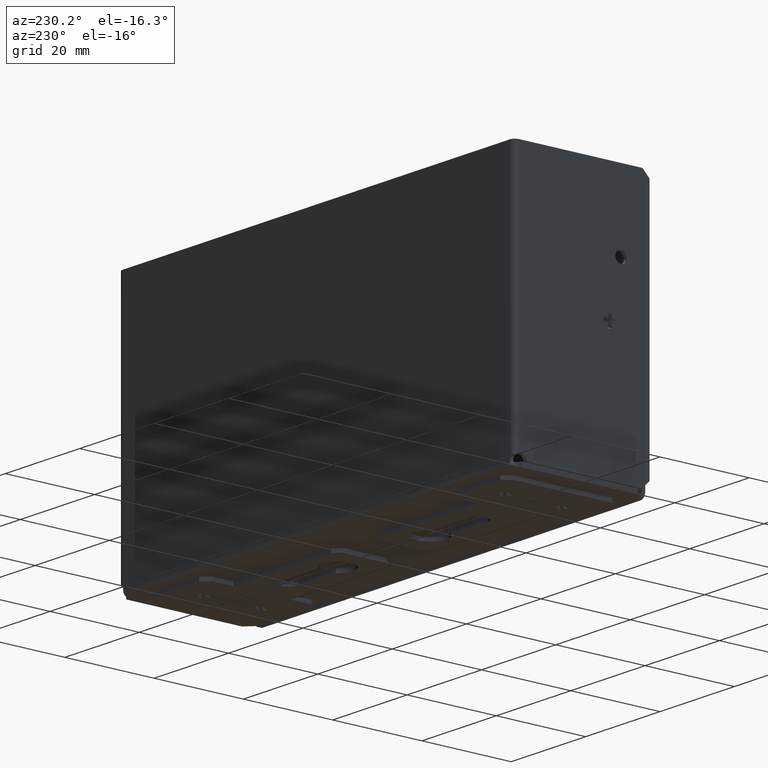
[diagram: clean part render]
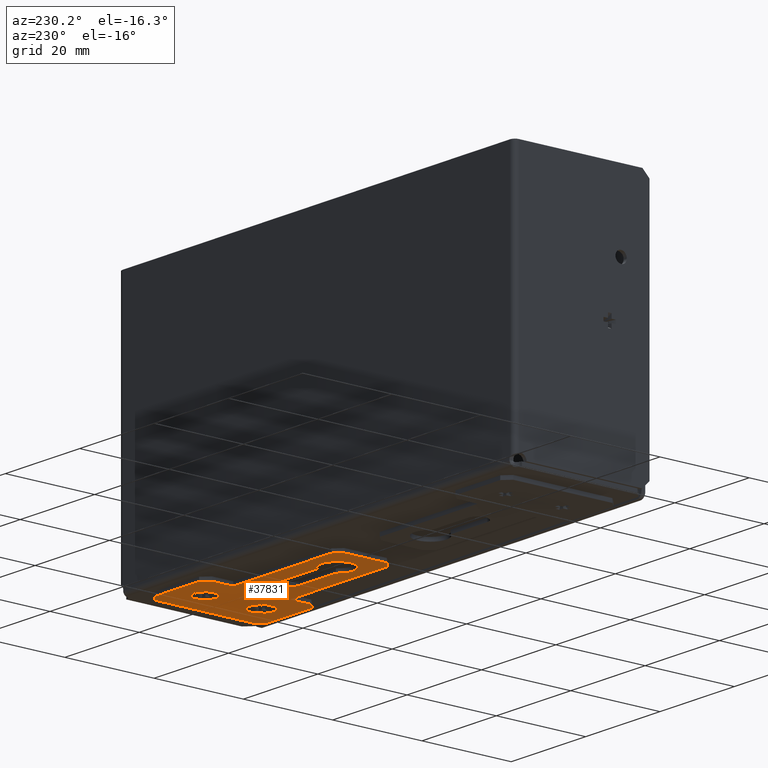
[diagram: same view with one face highlighted and labeled with its STEP entity id]
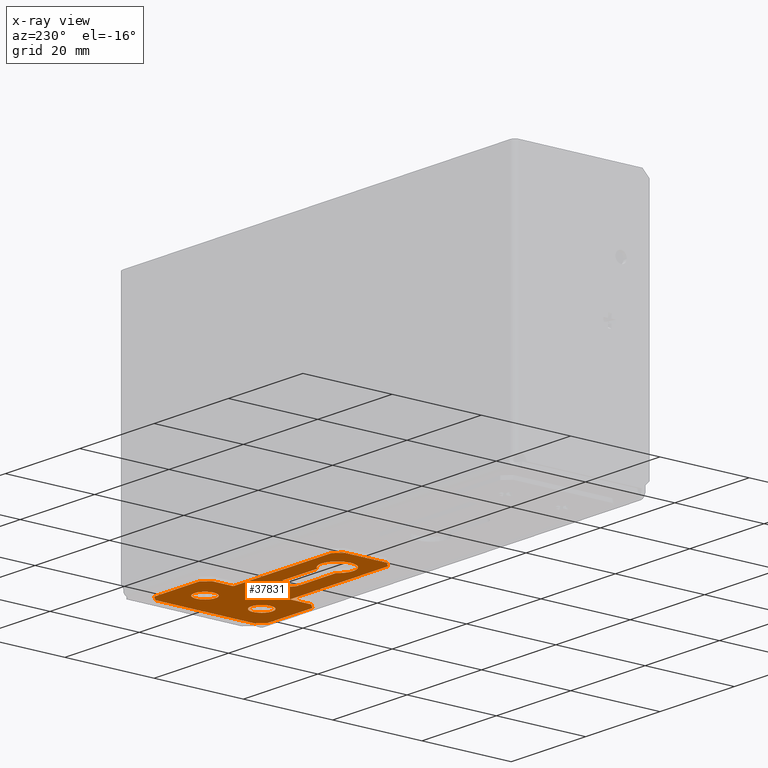
[diagram: x-ray of the same camera — body ghosted, the highlighted face saturated]
A machine part, auxiliary view. The second image highlights one B-rep face of the part: STEP entity #37831.
The next image is the same camera in x-ray: the body ghosted, the highlighted face saturated — about 0% of this face is hidden behind the body in this view.
In plain terms, the highlighted planar face has unit normal (-0, 0, 1).
Its self-contained STEP definition (entity closure, byte-faithful):
#957 = CARTESIAN_POINT ( 'NONE',  ( 0.0000000000000000000, -6.350000000000022700, -0.8636000000000000300 ) ) ;
#960 = DIRECTION ( 'NONE',  ( 0.0000000000000000000, 0.0000000000000000000, 1.000000000000000000 ) ) ;
#962 = DIRECTION ( 'NONE',  ( 1.000000000000000000, 0.0000000000000000000, 0.0000000000000000000 ) ) ;
#2952 = VECTOR ( 'NONE', #6332, 1000.000000000000000 ) ;
#3116 = VECTOR ( 'NONE', #6727, 1000.000000000000000 ) ;
#3177 = VECTOR ( 'NONE', #6914, 1000.000000000000100 ) ;
#3183 = VECTOR ( 'NONE', #6932, 1000.000000000000000 ) ;
#3184 = VECTOR ( 'NONE', #6937, 1000.000000000000000 ) ;
#3186 = VECTOR ( 'NONE', #6942, 1000.000000000000000 ) ;
#3190 = CIRCLE ( 'NONE', #3193, 2.374900000000000200 ) ;
#3193 = AXIS2_PLACEMENT_3D ( 'NONE', #6959, #6961, #6963 ) ;
#3194 = CIRCLE ( 'NONE', #3198, 2.095500000000001700 ) ;
#3196 = CIRCLE ( 'NONE', #3203, 3.568700000000018400 ) ;
#3198 = AXIS2_PLACEMENT_3D ( 'NONE', #6973, #6974, #6976 ) ;
#3203 = AXIS2_PLACEMENT_3D ( 'NONE', #6981, #6983, #6985 ) ;
#3224 = VECTOR ( 'NONE', #7041, 1000.000000000000000 ) ;
#3230 = VECTOR ( 'NONE', #7060, 1000.000000000000000 ) ;
#3234 = VECTOR ( 'NONE', #7088, 1000.000000000000000 ) ;
#3238 = VECTOR ( 'NONE', #7119, 1000.000000000000000 ) ;
#3251 = VECTOR ( 'NONE', #7149, 1000.000000000000000 ) ;
#5301 = EDGE_LOOP ( 'NONE', ( #21187, #20982, #21432, #22958, #20937, #27080, #26937, #26936, #27121, #21322, #23007, #21231, #21422, #23009 ) ) ;
#6330 = LINE ( 'NONE', #6331, #2952 ) ;
#6331 = CARTESIAN_POINT ( 'NONE',  ( 33.97250000000002500, 6.349999999999977400, -0.8636000000000000300 ) ) ;
#6332 = DIRECTION ( 'NONE',  ( -1.000000000000000000, 0.0000000000000000000, 0.0000000000000000000 ) ) ;
#6677 = LINE ( 'NONE', #6724, #3116 ) ;
#6709 = LINE ( 'NONE', #6766, #25756 ) ;
#6724 = CARTESIAN_POINT ( 'NONE',  ( 35.55999999999999500, 4.762499999999977100, -0.8636000000000000300 ) ) ;
#6727 = DIRECTION ( 'NONE',  ( -0.7071067811865409100, 0.7071067811865541200, 0.0000000000000000000 ) ) ;
#6766 = CARTESIAN_POINT ( 'NONE',  ( 33.97250000000002500, -6.350000000000022700, -0.8636000000000000300 ) ) ;
#6769 = DIRECTION ( 'NONE',  ( 0.7071067811865411300, 0.7071067811865539000, 0.0000000000000000000 ) ) ;
#6787 = LINE ( 'NONE', #6789, #25944 ) ;
#6789 = CARTESIAN_POINT ( 'NONE',  ( 7.620000000000062300, -11.11249999999992100, -0.8636000000000000300 ) ) ;
#6791 = DIRECTION ( 'NONE',  ( 0.0000000000000000000, 1.000000000000000000, 0.0000000000000000000 ) ) ;
#6910 = LINE ( 'NONE', #6912, #3177 ) ;
#6912 = CARTESIAN_POINT ( 'NONE',  ( -6.032499999999948200, 12.69999999999998000, -0.8636000000000000300 ) ) ;
#6914 = DIRECTION ( 'NONE',  ( -0.7071067811865474600, -0.7071067811865474600, 0.0000000000000000000 ) ) ;
#6927 = LINE ( 'NONE', #6930, #3183 ) ;
#6930 = CARTESIAN_POINT ( 'NONE',  ( 35.55999999999999500, -4.762500000000022400, -0.8636000000000000300 ) ) ;
#6932 = DIRECTION ( 'NONE',  ( 0.0000000000000000000, 1.000000000000000000, 0.0000000000000000000 ) ) ;
#6933 = LINE ( 'NONE', #6936, #3184 ) ;
#6936 = CARTESIAN_POINT ( 'NONE',  ( 6.032500000000062800, 12.69999999999998000, -0.8636000000000000300 ) ) ;
#6937 = DIRECTION ( 'NONE',  ( -1.000000000000000000, 0.0000000000000000000, 0.0000000000000000000 ) ) ;
#6938 = LINE ( 'NONE', #6941, #3186 ) ;
#6941 = CARTESIAN_POINT ( 'NONE',  ( 7.620000000000062300, 11.11249999999997900, -0.8636000000000000300 ) ) ;
#6942 = DIRECTION ( 'NONE',  ( -0.7071067811865473500, 0.7071067811865477900, 0.0000000000000000000 ) ) ;
#6959 = CARTESIAN_POINT ( 'NONE',  ( 0.0000000000000000000, 6.349999999999999600, -0.8636000000000000300 ) ) ;
#6961 = DIRECTION ( 'NONE',  ( 0.0000000000000000000, 0.0000000000000000000, 1.000000000000000000 ) ) ;
#6963 = DIRECTION ( 'NONE',  ( 1.000000000000000000, 0.0000000000000000000, 0.0000000000000000000 ) ) ;
#6973 = CARTESIAN_POINT ( 'NONE',  ( 15.24000000000005700, 0.01330230258000382600, -0.8636000000000000300 ) ) ;
#6974 = DIRECTION ( 'NONE',  ( 0.0000000000000000000, 0.0000000000000000000, 1.000000000000000000 ) ) ;
#6976 = DIRECTION ( 'NONE',  ( 1.000000000000000000, 0.0000000000000000000, 0.0000000000000000000 ) ) ;
#6981 = CARTESIAN_POINT ( 'NONE',  ( 27.93999999969150800, 0.01330230215399235200, -0.8636000000000000300 ) ) ;
#6983 = DIRECTION ( 'NONE',  ( 0.0000000000000000000, 0.0000000000000000000, 1.000000000000000000 ) ) ;
#6985 = DIRECTION ( 'NONE',  ( 1.000000000000000000, 0.0000000000000000000, 0.0000000000000000000 ) ) ;
#7019 = LINE ( 'NONE', #7084, #3234 ) ;
#7036 = LINE ( 'NONE', #7039, #3224 ) ;
#7039 = CARTESIAN_POINT ( 'NONE',  ( 25.05131527507812100, 2.108802302580004900, -0.8636000000000000300 ) ) ;
#7041 = DIRECTION ( 'NONE',  ( -1.000000000000000000, 0.0000000000000000000, 0.0000000000000000000 ) ) ;
#7055 = LINE ( 'NONE', #7058, #3230 ) ;
#7058 = CARTESIAN_POINT ( 'NONE',  ( 7.620000000000062300, -6.350000000000022700, -0.8636000000000000300 ) ) ;
#7060 = DIRECTION ( 'NONE',  ( 1.000000000000000000, 0.0000000000000000000, 0.0000000000000000000 ) ) ;
#7064 = LINE ( 'NONE', #7116, #3238 ) ;
#7084 = CARTESIAN_POINT ( 'NONE',  ( 6.032500000000062800, -12.69999999999991900, -0.8636000000000000300 ) ) ;
#7088 = DIRECTION ( 'NONE',  ( 0.7071067811865477900, 0.7071067811865473500, 0.0000000000000000000 ) ) ;
#7116 = CARTESIAN_POINT ( 'NONE',  ( -6.032499999999948200, -12.69999999999991900, -0.8636000000000000300 ) ) ;
#7119 = DIRECTION ( 'NONE',  ( 1.000000000000000000, 0.0000000000000000000, 0.0000000000000000000 ) ) ;
#7144 = LINE ( 'NONE', #7147, #3251 ) ;
#7147 = CARTESIAN_POINT ( 'NONE',  ( -7.619999999999948600, -11.11249999999992100, -0.8636000000000000300 ) ) ;
#7149 = DIRECTION ( 'NONE',  ( 0.7071067811865479100, -0.7071067811865471300, 0.0000000000000000000 ) ) ;
#7202 = LINE ( 'NONE', #7204, #25567 ) ;
#7204 = CARTESIAN_POINT ( 'NONE',  ( 15.24000000000005700, -2.082197697419997200, -0.8636000000000000300 ) ) ;
#7206 = DIRECTION ( 'NONE',  ( 1.000000000000000000, 0.0000000000000000000, 0.0000000000000000000 ) ) ;
#7424 = LINE ( 'NONE', #7511, #25322 ) ;
#7511 = CARTESIAN_POINT ( 'NONE',  ( -7.619999999999948600, 11.11249999999997900, -0.8636000000000000300 ) ) ;
#7514 = DIRECTION ( 'NONE',  ( 0.0000000000000000000, -1.000000000000000000, 0.0000000000000000000 ) ) ;
#10057 = AXIS2_PLACEMENT_3D ( 'NONE', #28210, #28212, #28213 ) ;
#10073 = CIRCLE ( 'NONE', #10057, 3.568700000000018400 ) ;
#10089 = CIRCLE ( 'NONE', #10337, 2.374900000000000200 ) ;
#10195 = AXIS2_PLACEMENT_3D ( 'NONE', #28321, #28322, #28323 ) ;
#10337 = AXIS2_PLACEMENT_3D ( 'NONE', #28214, #28215, #28217 ) ;
#10729 = CIRCLE ( 'NONE', #10195, 2.374900000000000200 ) ;
#10879 = VECTOR ( 'NONE', #28149, 1000.000000000000000 ) ;
#20937 = ORIENTED_EDGE ( 'NONE', *, *, #23794, .F. ) ;
#20982 = ORIENTED_EDGE ( 'NONE', *, *, #48628, .F. ) ;
#21187 = ORIENTED_EDGE ( 'NONE', *, *, #23346, .F. ) ;
#21221 = ORIENTED_EDGE ( 'NONE', *, *, #48734, .T. ) ;
#21231 = ORIENTED_EDGE ( 'NONE', *, *, #48723, .F. ) ;
#21322 = ORIENTED_EDGE ( 'NONE', *, *, #48760, .F. ) ;
#21422 = ORIENTED_EDGE ( 'NONE', *, *, #48727, .F. ) ;
#21432 = ORIENTED_EDGE ( 'NONE', *, *, #48694, .F. ) ;
#21437 = ORIENTED_EDGE ( 'NONE', *, *, #23362, .T. ) ;
#22946 = ORIENTED_EDGE ( 'NONE', *, *, #48731, .T. ) ;
#22950 = ORIENTED_EDGE ( 'NONE', *, *, #23363, .T. ) ;
#22958 = ORIENTED_EDGE ( 'NONE', *, *, #48726, .F. ) ;
#22959 = ORIENTED_EDGE ( 'NONE', *, *, #23382, .T. ) ;
#22962 = ORIENTED_EDGE ( 'NONE', *, *, #23685, .T. ) ;
#23007 = ORIENTED_EDGE ( 'NONE', *, *, #23910, .F. ) ;
#23009 = ORIENTED_EDGE ( 'NONE', *, *, #48728, .F. ) ;
#23346 = EDGE_CURVE ( 'NONE', #42849, #42268, #28144, .T. ) ;
#23362 = EDGE_CURVE ( 'NONE', #41848, #41790, #10073, .T. ) ;
#23363 = EDGE_CURVE ( 'NONE', #41795, #42835, #10089, .T. ) ;
#23382 = EDGE_CURVE ( 'NONE', #42858, #41837, #10729, .T. ) ;
#23685 = EDGE_CURVE ( 'NONE', #42835, #41795, #26028, .T. ) ;
#23794 = EDGE_CURVE ( 'NONE', #42275, #42273, #6709, .T. ) ;
#23798 = EDGE_CURVE ( 'NONE', #42279, #42276, #6787, .T. ) ;
#23861 = EDGE_CURVE ( 'NONE', #42252, #42258, #7202, .T. ) ;
#23910 = EDGE_CURVE ( 'NONE', #42287, #42285, #7424, .T. ) ;
#25322 = VECTOR ( 'NONE', #7514, 1000.000000000000000 ) ;
#25567 = VECTOR ( 'NONE', #7206, 1000.000000000000000 ) ;
#25756 = VECTOR ( 'NONE', #6769, 1000.000000000000000 ) ;
#25944 = VECTOR ( 'NONE', #6791, 1000.000000000000000 ) ;
#26005 = AXIS2_PLACEMENT_3D ( 'NONE', #957, #960, #962 ) ;
#26028 = CIRCLE ( 'NONE', #26005, 2.374900000000000200 ) ;
#26936 = ORIENTED_EDGE ( 'NONE', *, *, #48750, .F. ) ;
#26937 = ORIENTED_EDGE ( 'NONE', *, *, #23798, .F. ) ;
#27080 = ORIENTED_EDGE ( 'NONE', *, *, #48746, .F. ) ;
#27098 = ORIENTED_EDGE ( 'NONE', *, *, #23861, .T. ) ;
#27121 = ORIENTED_EDGE ( 'NONE', *, *, #48755, .F. ) ;
#27239 = ORIENTED_EDGE ( 'NONE', *, *, #48733, .T. ) ;
#27305 = ORIENTED_EDGE ( 'NONE', *, *, #48743, .T. ) ;
#28140 = CARTESIAN_POINT ( 'NONE',  ( 7.620000000000062300, 6.349999999999977400, -0.8636000000000000300 ) ) ;
#28144 = LINE ( 'NONE', #28140, #10879 ) ;
#28149 = DIRECTION ( 'NONE',  ( 0.0000000000000000000, 1.000000000000000000, 0.0000000000000000000 ) ) ;
#28210 = CARTESIAN_POINT ( 'NONE',  ( 27.93999999969150800, 0.01330230215399235200, -0.8636000000000000300 ) ) ;
#28212 = DIRECTION ( 'NONE',  ( 0.0000000000000000000, 0.0000000000000000000, 1.000000000000000000 ) ) ;
#28213 = DIRECTION ( 'NONE',  ( 1.000000000000000000, 0.0000000000000000000, 0.0000000000000000000 ) ) ;
#28214 = CARTESIAN_POINT ( 'NONE',  ( 0.0000000000000000000, -6.350000000000022700, -0.8636000000000000300 ) ) ;
#28215 = DIRECTION ( 'NONE',  ( 0.0000000000000000000, 0.0000000000000000000, 1.000000000000000000 ) ) ;
#28217 = DIRECTION ( 'NONE',  ( 1.000000000000000000, 0.0000000000000000000, 0.0000000000000000000 ) ) ;
#28321 = CARTESIAN_POINT ( 'NONE',  ( 0.0000000000000000000, 6.349999999999999600, -0.8636000000000000300 ) ) ;
#28322 = DIRECTION ( 'NONE',  ( 0.0000000000000000000, 0.0000000000000000000, 1.000000000000000000 ) ) ;
#28323 = DIRECTION ( 'NONE',  ( 1.000000000000000000, 0.0000000000000000000, 0.0000000000000000000 ) ) ;
#36015 = FACE_BOUND ( 'NONE', #41056, .T. ) ;
#36017 = DIRECTION ( 'NONE',  ( 0.0000000000000000000, -0.0000000000000000000, 1.000000000000000000 ) ) ;
#36028 = PLANE ( 'NONE',  #44367 ) ;
#36030 = FACE_BOUND ( 'NONE', #41069, .T. ) ;
#36031 = CARTESIAN_POINT ( 'NONE',  ( 7.620000000000062300, 12.69999999999998000, -0.8636000000000000300 ) ) ;
#36032 = FACE_BOUND ( 'NONE', #41406, .T. ) ;
#36034 = FACE_OUTER_BOUND ( 'NONE', #5301, .T. ) ;
#36035 = DIRECTION ( 'NONE',  ( 1.000000000000000000, 0.0000000000000000000, -0.0000000000000000000 ) ) ;
#37831 = ADVANCED_FACE ( 'NONE', ( #36015, #36030, #36032, #36034 ), #36028, .F. ) ;
#41056 = EDGE_LOOP ( 'NONE', ( #22962, #22950 ) ) ;
#41069 = EDGE_LOOP ( 'NONE', ( #22946, #22959 ) ) ;
#41406 = EDGE_LOOP ( 'NONE', ( #27305, #27239, #27098, #21221, #21437 ) ) ;
#41790 = VERTEX_POINT ( 'NONE', #43088 ) ;
#41795 = VERTEX_POINT ( 'NONE', #43091 ) ;
#41837 = VERTEX_POINT ( 'NONE', #43125 ) ;
#41848 = VERTEX_POINT ( 'NONE', #43136 ) ;
#42243 = VERTEX_POINT ( 'NONE', #43412 ) ;
#42252 = VERTEX_POINT ( 'NONE', #43421 ) ;
#42257 = VERTEX_POINT ( 'NONE', #43426 ) ;
#42258 = VERTEX_POINT ( 'NONE', #43427 ) ;
#42267 = VERTEX_POINT ( 'NONE', #43436 ) ;
#42268 = VERTEX_POINT ( 'NONE', #43437 ) ;
#42270 = VERTEX_POINT ( 'NONE', #43439 ) ;
#42273 = VERTEX_POINT ( 'NONE', #43442 ) ;
#42275 = VERTEX_POINT ( 'NONE', #43444 ) ;
#42276 = VERTEX_POINT ( 'NONE', #43445 ) ;
#42279 = VERTEX_POINT ( 'NONE', #43448 ) ;
#42281 = VERTEX_POINT ( 'NONE', #43450 ) ;
#42283 = VERTEX_POINT ( 'NONE', #43452 ) ;
#42285 = VERTEX_POINT ( 'NONE', #43454 ) ;
#42287 = VERTEX_POINT ( 'NONE', #43456 ) ;
#42514 = VERTEX_POINT ( 'NONE', #43631 ) ;
#42835 = VERTEX_POINT ( 'NONE', #43893 ) ;
#42849 = VERTEX_POINT ( 'NONE', #43907 ) ;
#42858 = VERTEX_POINT ( 'NONE', #43916 ) ;
#43088 = CARTESIAN_POINT ( 'NONE',  ( 25.05131527507812100, 2.108802302580006200, -0.8636000000000000300 ) ) ;
#43091 = CARTESIAN_POINT ( 'NONE',  ( -2.374900000000000200, -6.350000000000022700, -0.8636000000000000300 ) ) ;
#43125 = CARTESIAN_POINT ( 'NONE',  ( 2.374900000000000200, 6.349999999999999600, -0.8636000000000000300 ) ) ;
#43136 = CARTESIAN_POINT ( 'NONE',  ( 31.50869999969152600, 0.01330230215399235200, -0.8636000000000000300 ) ) ;
#43412 = CARTESIAN_POINT ( 'NONE',  ( 15.24000000000005700, 2.108802302580004900, -0.8636000000000000300 ) ) ;
#43421 = CARTESIAN_POINT ( 'NONE',  ( 15.24000000000005700, -2.082197697419997200, -0.8636000000000000300 ) ) ;
#43426 = CARTESIAN_POINT ( 'NONE',  ( 6.032500000000062800, 12.69999999999998000, -0.8636000000000000300 ) ) ;
#43427 = CARTESIAN_POINT ( 'NONE',  ( 25.05131527446004800, -2.082197697419997600, -0.8636000000000000300 ) ) ;
#43436 = CARTESIAN_POINT ( 'NONE',  ( 33.97250000000002500, 6.349999999999977400, -0.8636000000000000300 ) ) ;
#43437 = CARTESIAN_POINT ( 'NONE',  ( 7.620000000000062300, 11.11249999999997900, -0.8636000000000000300 ) ) ;
#43439 = CARTESIAN_POINT ( 'NONE',  ( 35.55999999999999500, 4.762499999999977100, -0.8636000000000000300 ) ) ;
#43442 = CARTESIAN_POINT ( 'NONE',  ( 35.55999999999999500, -4.762500000000022400, -0.8636000000000000300 ) ) ;
#43444 = CARTESIAN_POINT ( 'NONE',  ( 33.97250000000002500, -6.350000000000022700, -0.8636000000000000300 ) ) ;
#43445 = CARTESIAN_POINT ( 'NONE',  ( 7.620000000000062300, -6.350000000000022700, -0.8636000000000000300 ) ) ;
#43448 = CARTESIAN_POINT ( 'NONE',  ( 7.620000000000062300, -11.11249999999992100, -0.8636000000000000300 ) ) ;
#43450 = CARTESIAN_POINT ( 'NONE',  ( 6.032500000000062800, -12.69999999999991900, -0.8636000000000000300 ) ) ;
#43452 = CARTESIAN_POINT ( 'NONE',  ( -6.032499999999948200, -12.69999999999991900, -0.8636000000000000300 ) ) ;
#43454 = CARTESIAN_POINT ( 'NONE',  ( -7.619999999999948600, -11.11249999999992100, -0.8636000000000000300 ) ) ;
#43456 = CARTESIAN_POINT ( 'NONE',  ( -7.619999999999948600, 11.11249999999997900, -0.8636000000000000300 ) ) ;
#43631 = CARTESIAN_POINT ( 'NONE',  ( -6.032499999999948200, 12.69999999999998000, -0.8636000000000000300 ) ) ;
#43893 = CARTESIAN_POINT ( 'NONE',  ( 2.374900000000000200, -6.350000000000022700, -0.8636000000000000300 ) ) ;
#43907 = CARTESIAN_POINT ( 'NONE',  ( 7.620000000000062300, 6.349999999999977400, -0.8636000000000000300 ) ) ;
#43916 = CARTESIAN_POINT ( 'NONE',  ( -2.374900000000000200, 6.349999999999999600, -0.8636000000000000300 ) ) ;
#44367 = AXIS2_PLACEMENT_3D ( 'NONE', #36031, #36017, #36035 ) ;
#48628 = EDGE_CURVE ( 'NONE', #42267, #42849, #6330, .T. ) ;
#48694 = EDGE_CURVE ( 'NONE', #42270, #42267, #6677, .T. ) ;
#48723 = EDGE_CURVE ( 'NONE', #42514, #42287, #6910, .T. ) ;
#48726 = EDGE_CURVE ( 'NONE', #42273, #42270, #6927, .T. ) ;
#48727 = EDGE_CURVE ( 'NONE', #42257, #42514, #6933, .T. ) ;
#48728 = EDGE_CURVE ( 'NONE', #42268, #42257, #6938, .T. ) ;
#48731 = EDGE_CURVE ( 'NONE', #41837, #42858, #3190, .T. ) ;
#48733 = EDGE_CURVE ( 'NONE', #42243, #42252, #3194, .T. ) ;
#48734 = EDGE_CURVE ( 'NONE', #42258, #41848, #3196, .T. ) ;
#48743 = EDGE_CURVE ( 'NONE', #41790, #42243, #7036, .T. ) ;
#48746 = EDGE_CURVE ( 'NONE', #42276, #42275, #7055, .T. ) ;
#48750 = EDGE_CURVE ( 'NONE', #42281, #42279, #7019, .T. ) ;
#48755 = EDGE_CURVE ( 'NONE', #42283, #42281, #7064, .T. ) ;
#48760 = EDGE_CURVE ( 'NONE', #42285, #42283, #7144, .T. ) ;